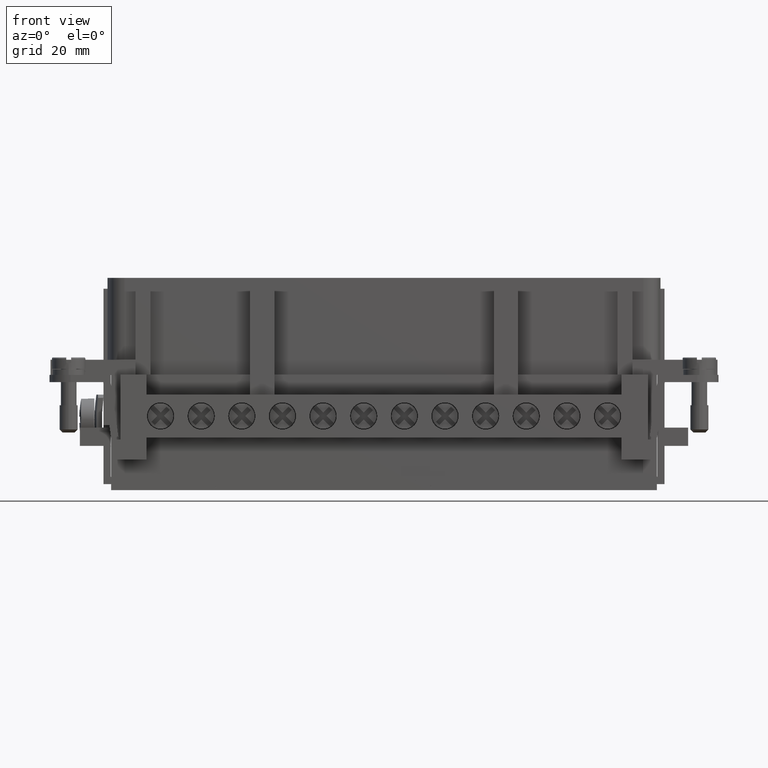
[diagram: clean part render]
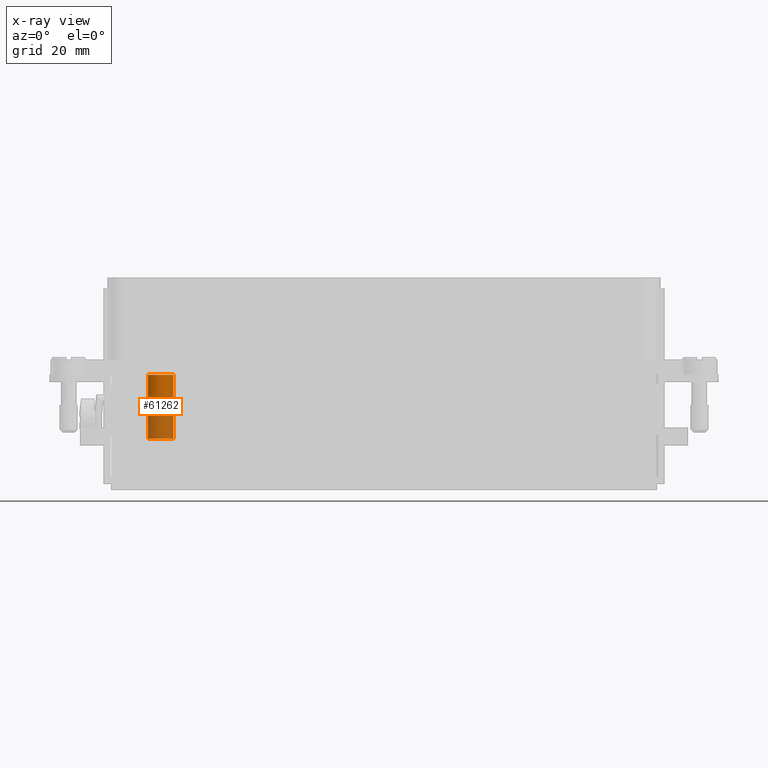
[diagram: x-ray — body ghosted, one internal face saturated and labeled with its STEP entity id]
A machine part, front view, then the same camera in x-ray: the body is ghosted and one INTERNAL B-rep face — a face not visible from any outside direction — is saturated and labeled: STEP entity #61262.
In plain terms, the highlighted face is a freeform B-spline surface patch.
Its self-contained STEP definition (entity closure, byte-faithful):
#56463=CARTESIAN_POINT('',(-38.950000000000003,3.600000000000001,18.999999999999996));
#56464=VERTEX_POINT('',#56463);
#56473=CARTESIAN_POINT('',(-34.750000000000000,3.600000000000000,18.999999999999996));
#56474=VERTEX_POINT('',#56473);
#56475=CARTESIAN_POINT('',(-36.850000000000001,3.600000000000001,18.999999999999996));
#56476=DIRECTION('',(0.0,0.0,-1.0));
#56477=DIRECTION('',(1.0,0.0,0.0));
#56478=AXIS2_PLACEMENT_3D('',#56475,#56476,#56477);
#56479=CIRCLE('',#56478,2.100000000000000);
#56480=EDGE_CURVE('',#56474,#56464,#56479,.T.);
#61192=CARTESIAN_POINT('',(-34.750000000000000,3.600000000000000,8.500000000000000));
#61193=VERTEX_POINT('',#61192);
#61194=CARTESIAN_POINT('',(-34.750000000000000,3.600000000000000,8.500000000000000));
#61195=DIRECTION('',(0.0,0.0,1.0));
#61196=VECTOR('',#61195,10.499999999999996);
#61197=LINE('',#61194,#61196);
#61198=EDGE_CURVE('',#61193,#56474,#61197,.T.);
#61217=CARTESIAN_POINT('',(-38.950000000000003,3.600000000000001,8.500000000000000));
#61218=CARTESIAN_POINT('',(-38.950000000000003,3.600000000000001,18.999999999999996));
#61219=CARTESIAN_POINT('',(-38.950000000000003,5.700000000000002,8.500000000000000));
#61220=CARTESIAN_POINT('',(-38.950000000000003,5.700000000000002,18.999999999999996));
#61221=CARTESIAN_POINT('',(-36.850000000000001,5.700000000000002,8.500000000000000));
#61222=CARTESIAN_POINT('',(-36.850000000000001,5.700000000000002,18.999999999999996));
#61223=CARTESIAN_POINT('',(-34.750000000000000,5.699999999999999,8.500000000000000));
#61224=CARTESIAN_POINT('',(-34.750000000000000,5.699999999999999,18.999999999999996));
#61225=CARTESIAN_POINT('',(-34.750000000000000,3.600000000000000,8.500000000000000));
#61226=CARTESIAN_POINT('',(-34.750000000000000,3.600000000000000,18.999999999999996));
#61227=CARTESIAN_POINT('',(-34.750000000000000,1.499999999999999,8.500000000000000));
#61228=CARTESIAN_POINT('',(-34.750000000000000,1.499999999999999,18.999999999999996));
#61229=CARTESIAN_POINT('',(-36.850000000000001,1.499999999999999,8.500000000000000));
#61230=CARTESIAN_POINT('',(-36.850000000000001,1.499999999999999,18.999999999999996));
#61231=CARTESIAN_POINT('',(-38.950000000000003,1.500000000000000,8.500000000000000));
#61232=CARTESIAN_POINT('',(-38.950000000000003,1.500000000000000,18.999999999999996));
#61233=CARTESIAN_POINT('',(-38.950000000000003,3.600000000000001,8.500000000000000));
#61234=CARTESIAN_POINT('',(-38.950000000000003,3.600000000000001,18.999999999999996));
#61242=(BOUNDED_SURFACE()B_SPLINE_SURFACE(1,2,((#61217,#61219,#61221,#61223,#61225,#61227,#61229,#61231,#61233),(#61218,#61220,#61222,#61224,#61226,#61228,#61230,#61232,#61234)),.UNSPECIFIED.,.F.,.T.,.U.)B_SPLINE_SURFACE_WITH_KNOTS((2,2),(3,2,2,2,3),(0.0,4.999999999999998),(0.0,3.298672286269283,6.597344572538566,9.896016858807849,13.194689145077131),.UNSPECIFIED.)GEOMETRIC_REPRESENTATION_ITEM()RATIONAL_B_SPLINE_SURFACE(((1.0,0.707106781186548,1.0,0.707106781186548,1.0,0.707106781186548,1.0,0.707106781186548,1.0),(1.0,0.707106781186548,1.0,0.707106781186548,1.0,0.707106781186548,1.0,0.707106781186548,1.0)))REPRESENTATION_ITEM('')SURFACE());
#61243=ORIENTED_EDGE('',*,*,#56480,.T.);
#61244=CARTESIAN_POINT('',(-38.950000000000003,3.600000000000001,8.500000000000000));
#61245=VERTEX_POINT('',#61244);
#61246=CARTESIAN_POINT('',(-38.950000000000003,3.600000000000001,8.500000000000000));
#61247=DIRECTION('',(0.0,0.0,1.0));
#61248=VECTOR('',#61247,10.499999999999996);
#61249=LINE('',#61246,#61248);
#61250=EDGE_CURVE('',#61245,#56464,#61249,.T.);
#61251=ORIENTED_EDGE('',*,*,#61250,.F.);
#61252=CARTESIAN_POINT('',(-36.850000000000001,3.600000000000001,8.500000000000000));
#61253=DIRECTION('',(0.0,0.0,-1.0));
#61254=DIRECTION('',(1.0,0.0,0.0));
#61255=AXIS2_PLACEMENT_3D('',#61252,#61253,#61254);
#61256=CIRCLE('',#61255,2.100000000000000);
#61257=EDGE_CURVE('',#61193,#61245,#61256,.T.);
#61258=ORIENTED_EDGE('',*,*,#61257,.F.);
#61259=ORIENTED_EDGE('',*,*,#61198,.T.);
#61260=EDGE_LOOP('',(#61243,#61251,#61258,#61259));
#61261=FACE_OUTER_BOUND('',#61260,.T.);
#61262=ADVANCED_FACE('',(#61261),#61242,.T.);